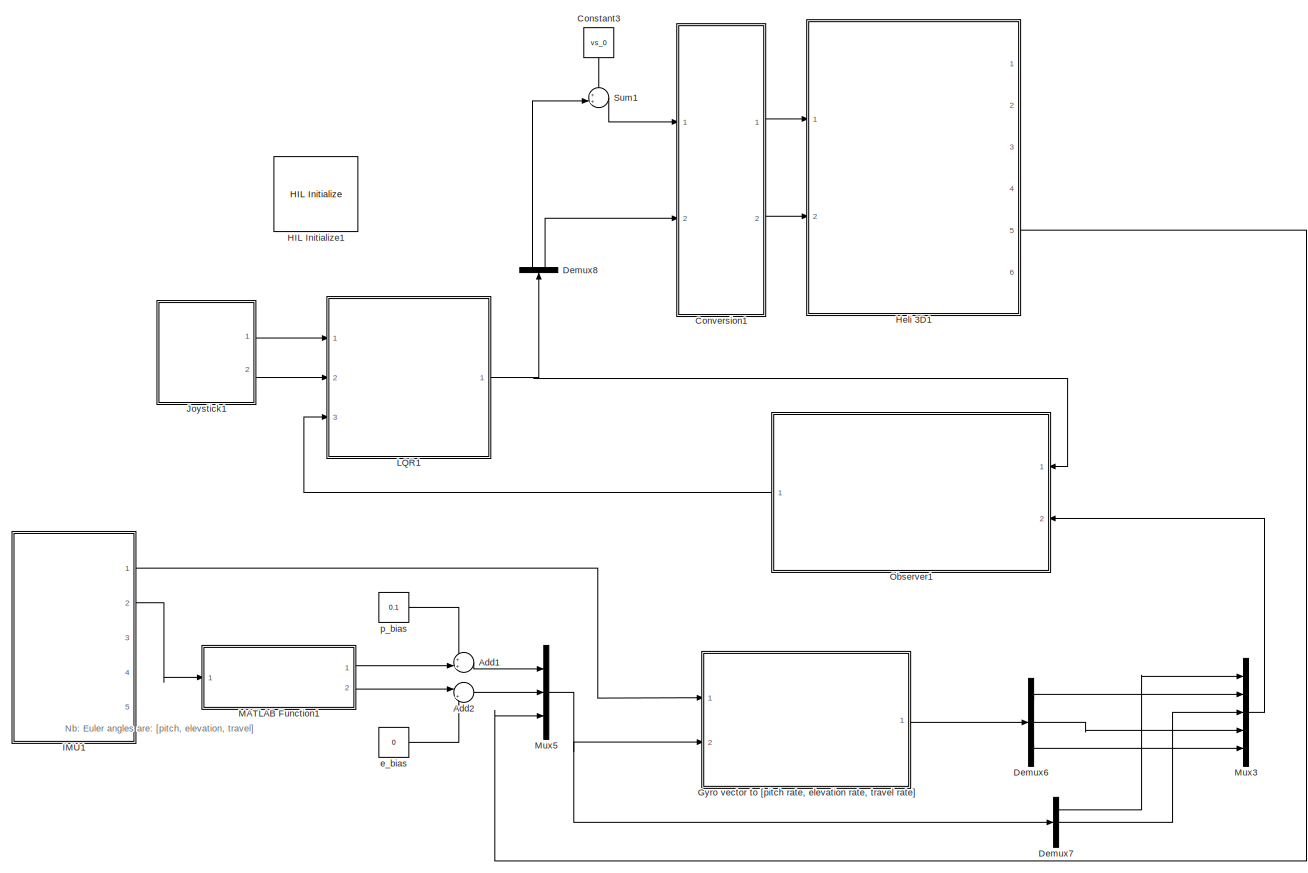
[diagram: root canvas - part 1/2, right side, full height]
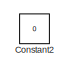
[diagram: root canvas - part 2/2, top left region]
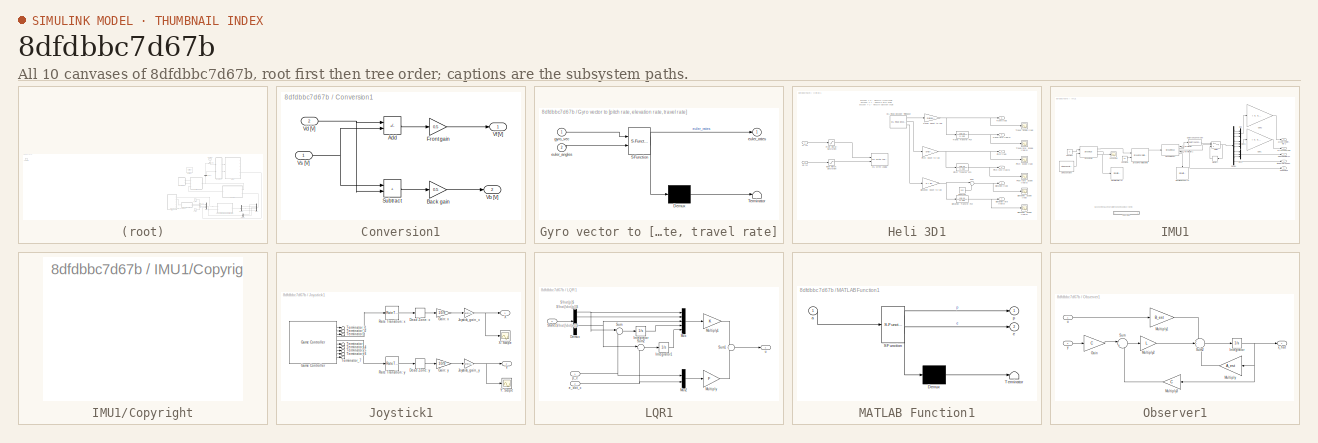
[diagram: thumbnail index - all 10 canvases of the model, root first then tree order]
MODEL slx_8dfdbbc7d67b
KIND model
CONFIG AbsTol = auto
CONFIG EnableMultiTasking = on
CONFIG FixedStep = 0.002
CONFIG MaxStep = auto
CONFIG MinStep = auto
CONFIG PostLoadFcn = qc_set_target_type(getConfigSet(bdroot, 'QUARC Default Target Configuration'));
CONFIG RelTol = 1e-3
CONFIG SampleTimeConstraint = Unconstrained
CONFIG SolverName = ode1
CONFIG StartTime = 0.0
CONFIG StopTime = inf
BLOCK [Sum] Add1
  Inputs = ++|
  Ports = [2, 1]
BLOCK [Sum] Add2
  Inputs = |++
  Ports = [2, 1]
BLOCK [Constant] Constant2
  Commented = on
  Value = 0
BLOCK [Constant] Constant3
  NameLocation = right
  Value = vs_0
BLOCK [SubSystem] Conversion1
  Ports = [2, 2]
  RequestExecContextInheritance = off
BLOCK [Sum] Conversion1/Add
  IconShape = rectangular
  Inputs = -+
  Ports = [2, 1]
BLOCK [Gain] Conversion1/Back gain
  Gain = 0.5
BLOCK [Gain] Conversion1/Front gain
  Gain = 0.5
BLOCK [Sum] Conversion1/Subtract
  IconShape = rectangular
  Ports = [2, 1]
BLOCK [Outport] Conversion1/Vb [V]
  Port = 2
BLOCK [Inport] Conversion1/Vd [V]
  Port = 2
BLOCK [Outport] Conversion1/Vf [V]
BLOCK [Inport] Conversion1/Vs [V]
BLOCK [Demux] Demux6
  Outputs = 3
  Ports = [1, 3]
BLOCK [Demux] Demux7
  Outputs = 3
  Ports = [1, 3]
BLOCK [Demux] Demux8
  NameLocation = right
  Outputs = 2
  Ports = [1, 2]
BLOCK [SubSystem] Gyro vector to [pitch rate, elevation rate, travel rate]
  ErrorFcn = Stateflow.Translate.translate
  PermitHierarchicalResolution = ExplicitOnly
  Ports = [2, 1]
  RequestExecContextInheritance = off
  SFBlockType = MATLAB Function
  TreatAsAtomicUnit = on
BLOCK [Demux] Gyro vector to [pitch rate, elevation rate, travel rate]/ Demux 
  Outputs = 1
  Ports = [1, 1]
BLOCK [S-Function] Gyro vector to [pitch rate, elevation rate, travel rate]/ SFunction 
  EnableBusSupport = on
  FunctionName = sf_sfun
  PortCounts = [2 2]
  Ports = [2, 2]
  SFcnIsStateOwnerBlock = off
  SFunctionDeploymentMode = off
  Tag = Stateflow S-Function 3
BLOCK [Terminator] Gyro vector to [pitch rate, elevation rate, travel rate]/ Terminator 
BLOCK [Inport] Gyro vector to [pitch rate, elevation rate, travel rate]/euler_angles
  Port = 2
BLOCK [Outport] Gyro vector to [pitch rate, elevation rate, travel rate]/euler_rates
BLOCK [Inport] Gyro vector to [pitch rate, elevation rate, travel rate]/gyro_vec
BLOCK [Reference] HIL Initialize1  REF=quarc_library/Data Acquisition/Generic/Configuration/HIL Initialize
  AttributesFormatString = %<object_name> (%<board_type>-%<board_number>)
  Ports = []
  Priority = -99
  SourceBlock = quarc_library/Data Acquisition/Generic/Configuration/HIL Initialize
  SourceProductName = QUARC Targets
  SourceType = HIL Initialize
  UserDataPersistent = on
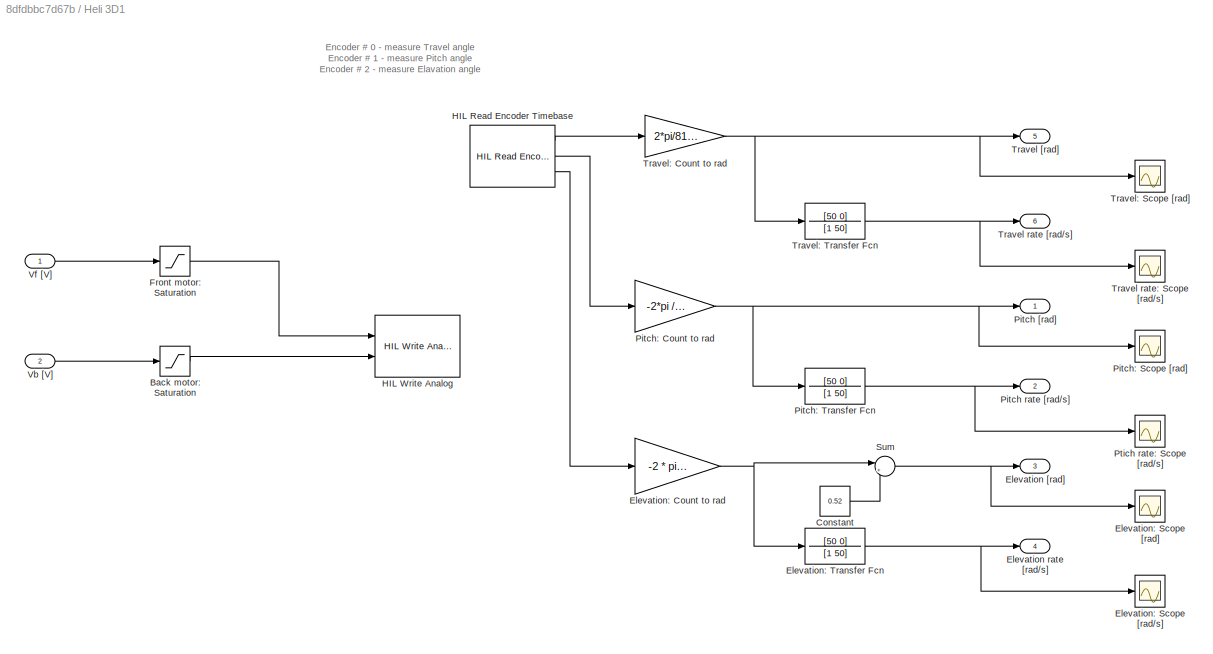
BLOCK [SubSystem] Heli 3D1
  Ports = [2, 6]
  RequestExecContextInheritance = off
BLOCK [Saturate] Heli 3D1/Back motor: Saturation
  LowerLimit = -5
  UpperLimit = 5
BLOCK [Constant] Heli 3D1/Constant
  Value = 0.52
BLOCK [Outport] Heli 3D1/Elevation [rad]
  Port = 3
BLOCK [Outport] Heli 3D1/Elevation rate [rad//s]
  Port = 4
BLOCK [Gain] Heli 3D1/Elevation: Count to rad
  Gain = -2 * pi /4096
BLOCK [Scope] Heli 3D1/Elevation: Scope [rad//s]
  Floating = off
  NumInputPorts = 1
  Ports = [1]
  ScopeSpecificationString = C++SS(StrPVP('Location','[1236, 673, 1560, 912]'),StrPVP('Open','off'),MxPVP('AxesTitles',54,'struct(''axes1'',''%<SignalLabel>'')'),MxPVP('ScopeGraphics',57,'struct(''FigureColor'',''[0.5 0.5 0.5]'',''AxesColor'',''[0 0 0]'',''AxesTickColor'',''[1 1 1]'',''LineColors'',''[1 1 0;1 0 1;0 1 1;1 0 0;0 1 0;0 0 1]'',''LineStyles'',''-|-|-|-|-|-'',''LineWidths'',''[0.5 0.5 0.5 0.5 0.5 0.5]'',''MarkerSty...<+342ch>
BLOCK [Scope] Heli 3D1/Elevation: Scope [rad]
  Floating = off
  NumInputPorts = 1
  Ports = [1]
  ScopeSpecificationString = Simulink.scopes.TimeScopeBlockCfg('CurrentConfiguration', extmgr.ConfigurationSet(extmgr.Configuration('Core','General UI',true),extmgr.Configuration('Core','Source UI',true),extmgr.Configuration('Sources','WiredSimulink',true,'DataLoggingVariableName','ScopeData12','DataLoggingSaveFormat','StructureWithTime','DataLoggingLimitDataPoints',true,'DataLoggingDecimation','1','DataLoggingDecimateData',t...<+1718ch>
BLOCK [TransferFcn] Heli 3D1/Elevation: Transfer Fcn
  Denominator = [1 50]
  Numerator = [50 0]
BLOCK [Saturate] Heli 3D1/Front motor: Saturation
  LowerLimit = -5
  UpperLimit = 5
BLOCK [Reference] Heli 3D1/HIL Read Encoder Timebase  REF=quarc_library/Data Acquisition/Generic/Timebases/HIL Read Encoder
Timebase
  AttributesFormatString = (%<object_name>)
  Ports = [0, 3]
  SourceBlock = quarc_library/Data Acquisition/Generic/Timebases/HIL Read Encoder\nTimebase
  SourceProductName = QUARC Targets
  SourceType = HIL Read Encoder Timebase
  UserDataPersistent = on
BLOCK [Reference] Heli 3D1/HIL Write Analog  REF=quarc_library/Data Acquisition/Generic/Immediate I//O/HIL Write Analog
  AttributesFormatString = (%<object_name>)
  Ports = [2]
  SourceBlock = quarc_library/Data Acquisition/Generic/Immediate I//O/HIL Write Analog
  SourceProductName = QUARC Targets
  SourceType = HIL Write Analog
  UserDataPersistent = on
BLOCK [Outport] Heli 3D1/Pitch [rad]
BLOCK [Outport] Heli 3D1/Pitch rate [rad//s]
  Port = 2
BLOCK [Gain] Heli 3D1/Pitch: Count to rad
  Gain = -2*pi /4096
  NameLocation = top
BLOCK [Scope] Heli 3D1/Pitch: Scope [rad]
  Floating = off
  NumInputPorts = 1
  Ports = [1]
  ScopeSpecificationString = Simulink.scopes.TimeScopeBlockCfg('CurrentConfiguration', extmgr.ConfigurationSet(extmgr.Configuration('Core','General UI',true),extmgr.Configuration('Core','Source UI',true),extmgr.Configuration('Sources','WiredSimulink',true,'DataLoggingVariableName','ScopeData10','DataLoggingSaveFormat','StructureWithTime','DataLoggingLimitDataPoints',true,'DataLoggingDecimation','1','DataLoggingDecimateData',t...<+1651ch>
BLOCK [TransferFcn] Heli 3D1/Pitch: Transfer Fcn
  Denominator = [1 50]
  Numerator = [50 0]
BLOCK [Scope] Heli 3D1/Ptich rate: Scope [rad//s]
  Floating = off
  NumInputPorts = 1
  Ports = [1]
  ScopeSpecificationString = C++SS(StrPVP('Location','[1236, 673, 1560, 912]'),StrPVP('Open','off'),MxPVP('AxesTitles',54,'struct(''axes1'',''%<SignalLabel>'')'),MxPVP('ScopeGraphics',57,'struct(''FigureColor'',''[0.5 0.5 0.5]'',''AxesColor'',''[0 0 0]'',''AxesTickColor'',''[1 1 1]'',''LineColors'',''[1 1 0;1 0 1;0 1 1;1 0 0;0 1 0;0 0 1]'',''LineStyles'',''-|-|-|-|-|-'',''LineWidths'',''[0.5 0.5 0.5 0.5 0.5 0.5]'',''MarkerSty...<+342ch>
BLOCK [Sum] Heli 3D1/Sum
  Inputs = |+-
  Ports = [2, 1]
BLOCK [Outport] Heli 3D1/Travel [rad]
  Port = 5
BLOCK [Outport] Heli 3D1/Travel rate [rad//s]
  Port = 6
BLOCK [Scope] Heli 3D1/Travel rate: Scope [rad//s]
  Floating = off
  NumInputPorts = 1
  Ports = [1]
  ScopeSpecificationString = Simulink.scopes.TimeScopeBlockCfg('CurrentConfiguration', extmgr.ConfigurationSet(extmgr.Configuration('Core','General UI',true),extmgr.Configuration('Core','Source UI',true),extmgr.Configuration('Sources','WiredSimulink',true,'DataLoggingVariableName','ScopeData9','DataLoggingSaveFormat','StructureWithTime','DataLoggingLimitDataPoints',true,'DataLoggingDecimation','1','DataLoggingDecimateData',tr...<+1650ch>
BLOCK [Gain] Heli 3D1/Travel: Count to rad
  Gain = 2*pi/8192
  NameLocation = top
BLOCK [Scope] Heli 3D1/Travel: Scope [rad]
  Floating = off
  NumInputPorts = 1
  Ports = [1]
  ScopeSpecificationString = Simulink.scopes.TimeScopeBlockCfg('CurrentConfiguration', extmgr.ConfigurationSet(extmgr.Configuration('Core','General UI',true),extmgr.Configuration('Core','Source UI',true),extmgr.Configuration('Sources','WiredSimulink',true,'DataLoggingVariableName','ScopeData8','DataLoggingSaveFormat','StructureWithTime','DataLoggingLimitDataPoints',true,'DataLoggingDecimation','1','DataLoggingDecimateData',tr...<+1650ch>
BLOCK [TransferFcn] Heli 3D1/Travel: Transfer Fcn
  Denominator = [1 50]
  Numerator = [50 0]
BLOCK [Inport] Heli 3D1/Vb [V]
  Port = 2
BLOCK [Inport] Heli 3D1/Vf [V]
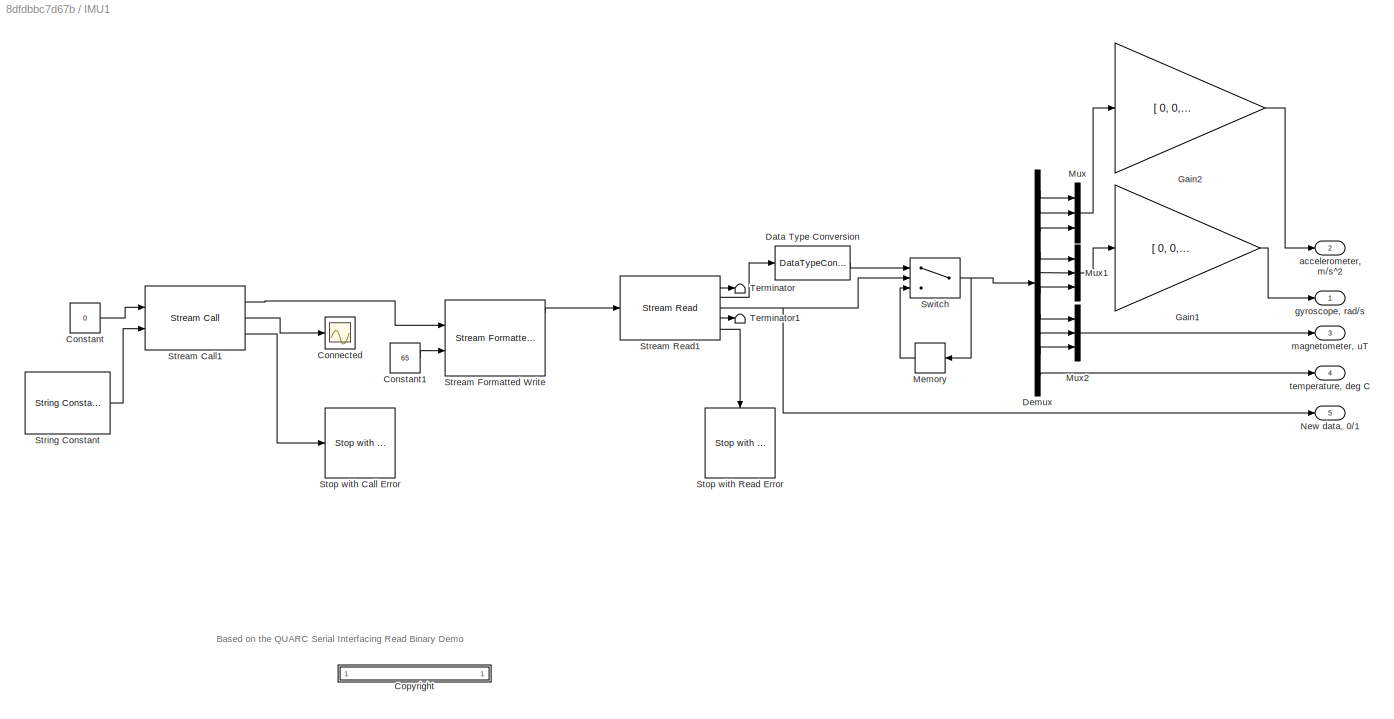
BLOCK [SubSystem] IMU1
  Ports = [0, 5]
  RequestExecContextInheritance = off
BLOCK [Scope] IMU1/Connected
  Floating = off
  NumInputPorts = 1
  Ports = [1]
  ScopeSpecificationString = Simulink.scopes.TimeScopeBlockCfg('CurrentConfiguration', extmgr.ConfigurationSet(extmgr.Configuration('Core','General UI',true),extmgr.Configuration('Core','Source UI',true),extmgr.Configuration('Sources','WiredSimulink',true,'DataLoggingSaveFormat','StructureWithTime','DataLoggingLimitDataPoints',true,'DataLoggingDecimation','1','DataLoggingDecimateData',true,'DataLoggingVariableName','ScopeData...<+909ch>
BLOCK [Constant] IMU1/Constant
  Value = 0
BLOCK [Constant] IMU1/Constant1
  Value = 65
BLOCK [SubSystem] IMU1/<copyright redacted>
  OpenFcn = web('http://www.quanser.com/');
  Permissions = NoReadOrWrite
  PermitHierarchicalResolution = None
  Ports = []
  RequestExecContextInheritance = off
BLOCK [DataTypeConversion] IMU1/Data Type Conversion
  OutDataTypeStr = double
  RndMeth = Floor
  SaturateOnIntegerOverflow = off
BLOCK [Demux] IMU1/Demux
  Outputs = 10
  Ports = [1, 10]
BLOCK [Gain] IMU1/Gain1
  Gain = [ 0, 0, 1; 0, 1, 0; -1, 0, 0]
  Multiplication = Matrix(K*u) (u vector)
BLOCK [Gain] IMU1/Gain2
  Gain = [ 0, 0, 1; 0, 1, 0; -1, 0, 0]
  Multiplication = Matrix(K*u) (u vector)
BLOCK [Memory] IMU1/Memory
  InitialCondition = [0 0 0 0 0 0 0 0 0 0]
  NameLocation = top
BLOCK [Mux] IMU1/Mux
  DisplayOption = bar
  Inputs = 3
  Ports = [3, 1]
BLOCK [Mux] IMU1/Mux1
  DisplayOption = bar
  Inputs = 3
  Ports = [3, 1]
BLOCK [Mux] IMU1/Mux2
  DisplayOption = bar
  Inputs = 3
  Ports = [3, 1]
BLOCK [Outport] IMU1/New data, 0//1
  Port = 5
BLOCK [Reference] IMU1/Stop with Call Error  REF=quarc_library/Sinks/Error Handling/Stop with Error
  Ports = [1]
  SourceBlock = quarc_library/Sinks/Error Handling/Stop with Error
  SourceProductName = QUARC Targets
  SourceType = Stop with Error
BLOCK [Reference] IMU1/Stop with Read Error  REF=quarc_library/Sinks/Error Handling/Stop with Error
  NameLocation = left
  Ports = [1]
  SourceBlock = quarc_library/Sinks/Error Handling/Stop with Error
  SourceProductName = QUARC Targets
  SourceType = Stop with Error
BLOCK [Reference] IMU1/Stream Call1  REF=quarc_library/Communications/Intermediate/Stream Call
  Ports = [2, 3]
  SourceBlock = quarc_library/Communications/Intermediate/Stream Call
  SourceProductName = QUARC Targets
  SourceType = Stream Call
BLOCK [Reference] IMU1/Stream Formatted Write  REF=quarc_library/Communications/Intermediate/Stream Formatted
Write
  Ports = [2, 5]
  SourceBlock = quarc_library/Communications/Intermediate/Stream Formatted\nWrite
  SourceProductName = QUARC Targets
  SourceType = Stream Formatted Write
BLOCK [Reference] IMU1/Stream Read1  REF=quarc_library/Communications/Intermediate/Stream Read
  Ports = [1, 5]
  SourceBlock = quarc_library/Communications/Intermediate/Stream Read
  SourceProductName = QUARC Targets
  SourceType = Stream Read
BLOCK [Reference] IMU1/String Constant  REF=quarc_library/Strings/String Constant
  AttributesFormatString = "serial://IMU:3?baud=115200,word=8,parity=none,stop=1"
  Ports = [0, 1]
  SourceBlock = quarc_library/Strings/String Constant
  SourceProductName = QUARC Targets
  SourceType = String Constant
BLOCK [Switch] IMU1/Switch
  Criteria = u2 > Threshold
  InputSameDT = off
  SaturateOnIntegerOverflow = off
BLOCK [Terminator] IMU1/Terminator
BLOCK [Terminator] IMU1/Terminator1
BLOCK [Outport] IMU1/accelerometer, m//s^2
  Port = 2
BLOCK [Outport] IMU1/gyroscope, rad//s
BLOCK [Outport] IMU1/magnetometer, uT
  Port = 3
BLOCK [Outport] IMU1/temperature, deg C
  Port = 4
BLOCK [SubSystem] Joystick1
  Ports = [0, 2]
  RequestExecContextInheritance = off
BLOCK [DeadZone] Joystick1/Dead Zone: x
  LowerValue = -0.1
  UpperValue = 0.1
BLOCK [DeadZone] Joystick1/Dead Zone: y
  LowerValue = -0.1
  UpperValue = 0.1
BLOCK [Gain] Joystick1/Gain: x
  Gain = 10/9
BLOCK [Gain] Joystick1/Gain: y
  Gain = 10/9
BLOCK [Reference] Joystick1/Game Controller  REF=quarc_library/Devices/Peripherals/Target/Game Controller
  Ports = [0, 10]
  SourceBlock = quarc_library/Devices/Peripherals/Target/Game Controller
  SourceProductName = QUARC Targets
  SourceType = Game Controller
BLOCK [Gain] Joystick1/Joystick_gain_x
  Gain = Joystick_gain_x
BLOCK [Gain] Joystick1/Joystick_gain_y
  Gain = Joystick_gain_y
BLOCK [RateTransition] Joystick1/Rate Transition: x
BLOCK [RateTransition] Joystick1/Rate Transition: y
BLOCK [Terminator] Joystick1/Terminator
BLOCK [Terminator] Joystick1/Terminator1
BLOCK [Terminator] Joystick1/Terminator_1
BLOCK [Terminator] Joystick1/Terminator_2
BLOCK [Terminator] Joystick1/Terminator_4
BLOCK [Terminator] Joystick1/Terminator_5
BLOCK [Terminator] Joystick1/Terminator_6
BLOCK [Terminator] Joystick1/Terminator_7
BLOCK [Outport] Joystick1/X
BLOCK [Scope] Joystick1/X: Scope
  Floating = off
  NumInputPorts = 1
  Ports = [1]
  ScopeSpecificationString = C++SS(StrPVP('Location','[894, 60, 1218, 301]'),StrPVP('Open','off'),StrPVP('ZoomMode','yonly'),MxPVP('AxesTitles',54,'struct(''axes1'',''%<SignalLabel>'')'),MxPVP('ScopeGraphics',57,'struct(''FigureColor'',''[0.5 0.5 0.5]'',''AxesColor'',''[0 0 0]'',''AxesTickColor'',''[1 1 1]'',''LineColors'',''[1 1 0;1 0 1;0 1 1;1 0 0;0 1 0;0 0 1]'',''LineStyles'',''-|-|-|-|-|-'',''LineWidths'',''[0.5 0.5 0.5 0...<+364ch>
BLOCK [Outport] Joystick1/Y
  Port = 2
BLOCK [Scope] Joystick1/Y: Scope
  Floating = off
  NumInputPorts = 1
  Ports = [1]
  ScopeSpecificationString = C++SS(StrPVP('Location','[894, 368, 1218, 604]'),StrPVP('Open','off'),MxPVP('AxesTitles',54,'struct(''axes1'',''%<SignalLabel>'')'),MxPVP('ScopeGraphics',57,'struct(''FigureColor'',''[0.5 0.5 0.5]'',''AxesColor'',''[0 0 0]'',''AxesTickColor'',''[1 1 1]'',''LineColors'',''[1 1 0;1 0 1;0 1 1;1 0 0;0 1 0;0 0 1]'',''LineStyles'',''-|-|-|-|-|-'',''LineWidths'',''[0.5 0.5 0.5 0.5 0.5 0.5]'',''MarkerStyl...<+340ch>
BLOCK [SubSystem] LQR1
  Ports = [3, 1]
  RequestExecContextInheritance = off
BLOCK [Demux] LQR1/Demux
  Outputs = 5
  Ports = [1, 5]
BLOCK [Integrator] LQR1/Integrator
  Ports = [1, 1]
BLOCK [Integrator] LQR1/Integrator1
  Ports = [1, 1]
BLOCK [Gain] LQR1/Multiply
  Gain = F
  Multiplication = Matrix(K*u) (u vector)
BLOCK [Gain] LQR1/Multiply1
  Gain = K
  Multiplication = Matrix(K*u) (u vector)
BLOCK [Mux] LQR1/Mux
  DisplayOption = bar
  Inputs = 5
  Ports = [5, 1]
BLOCK [Mux] LQR1/Mux2
  DisplayOption = bar
  Inputs = 2
  Ports = [2, 1]
BLOCK [Inport] LQR1/States
  Port = 3
BLOCK [Sum] LQR1/Sum
  Inputs = |+-
  Ports = [2, 1]
BLOCK [Sum] LQR1/Sum1
  Inputs = -|+
  Ports = [2, 1]
BLOCK [Sum] LQR1/Sum2
  Inputs = |+-
  Ports = [2, 1]
BLOCK [Inport] LQR1/e_dot_c
  Port = 2
BLOCK [Inport] LQR1/p_c
  NameLocation = top
BLOCK [Outport] LQR1/u
BLOCK [SubSystem] MATLAB Function1
  ErrorFcn = Stateflow.Translate.translate
  PermitHierarchicalResolution = ExplicitOnly
  Ports = [1, 2]
  RequestExecContextInheritance = off
  SFBlockType = MATLAB Function
  TreatAsAtomicUnit = on
BLOCK [Demux] MATLAB Function1/ Demux 
  Outputs = 1
  Ports = [1, 1]
BLOCK [S-Function] MATLAB Function1/ SFunction 
  EnableBusSupport = on
  FunctionName = sf_sfun
  PortCounts = [1 3]
  Ports = [1, 3]
  SFcnIsStateOwnerBlock = off
  SFunctionDeploymentMode = off
  Tag = Stateflow S-Function 4
BLOCK [Terminator] MATLAB Function1/ Terminator 
BLOCK [Inport] MATLAB Function1/a
BLOCK [Outport] MATLAB Function1/e
  Port = 2
BLOCK [Outport] MATLAB Function1/p
BLOCK [Mux] Mux3
  DisplayOption = bar
  Inputs = 5
  Ports = [5, 1]
BLOCK [Mux] Mux5
  DisplayOption = bar
  Inputs = 3
  Ports = [3, 1]
BLOCK [SubSystem] Observer1
  NameLocation = top
  Ports = [2, 1]
  RequestExecContextInheritance = off
BLOCK [Gain] Observer1/Gain
  Gain = C
  Multiplication = Matrix(K*u) (u vector)
BLOCK [Integrator] Observer1/Integrator
  Ports = [1, 1]
BLOCK [Gain] Observer1/Multiply
  Gain = A_est
  Multiplication = Matrix(K*u) (u vector)
BLOCK [Gain] Observer1/Multiply1
  Gain = B_est
  Multiplication = Matrix(K*u) (u vector)
BLOCK [Gain] Observer1/Multiply2
  Gain = L
  Multiplication = Matrix(K*u) (u vector)
BLOCK [Gain] Observer1/Multiply3
  Gain = C
  Multiplication = Matrix(K*u) (u vector)
BLOCK [Sum] Observer1/Sum
  Inputs = |+-
  Ports = [2, 1]
BLOCK [Sum] Observer1/Sum2
  Inputs = +++
  Ports = [3, 1]
BLOCK [Inport] Observer1/u
BLOCK [Outport] Observer1/x_hat
BLOCK [Inport] Observer1/y
  Port = 2
BLOCK [Sum] Sum1
  Inputs = ++|
  Ports = [2, 1]
BLOCK [Constant] e_bias
  Value = 0
BLOCK [Constant] p_bias
  Value = 0.1
ANNOTATION (root): Nb: Euler angles are: [pitch, elevation, travel]
ANNOTATION Heli 3D1: Encoder # 0 - measure Travel angle Encoder # 1 - measure Pitch angle Encoder # 2 - measure Elavation angle
ANNOTATION IMU1: Based on the QUARC Serial Interfacing Read Binary Demo
ANNOTATION LQR1: $\hat{\dot{e}}$
ANNOTATION LQR1: $\hat{\dot{p}}$
ANNOTATION LQR1: $\hat{p}$
LINE Add1:1 -> Mux5:1
LINE Add2:1 -> Mux5:2
LINE Constant3:1 -> Sum1:1
LINE Conversion1/Add:1 -> Conversion1/Front gain:1
LINE Conversion1/Back gain:1 -> Conversion1/Vb [V]:1
LINE Conversion1/Front gain:1 -> Conversion1/Vf [V]:1
LINE Conversion1/Subtract:1 -> Conversion1/Back gain:1
NET Conversion1/Vd [V]:1 -> Conversion1/Add:1, Conversion1/Subtract:2
NET Conversion1/Vs [V]:1 -> Conversion1/Add:2, Conversion1/Subtract:1
LINE Conversion1:1 -> Heli 3D1:1
LINE Conversion1:2 -> Heli 3D1:2
LINE Demux6:1 -> Mux3:2
LINE Demux6:2 -> Mux3:4
LINE Demux6:3 -> Mux3:5
LINE Demux7:1 -> Mux3:1
LINE Demux7:2 -> Mux3:3
LINE Demux8:1 -> Sum1:2
LINE Demux8:2 -> Conversion1:2
LINE Gyro vector to [pitch rate, elevation rate, travel rate]:1 -> Demux6:1
LINE Heli 3D1/Back motor: Saturation:1 -> Heli 3D1/HIL Write Analog:2
LINE Heli 3D1/Constant:1 -> Heli 3D1/Sum:2
NET Heli 3D1/Elevation: Count to rad:1 -> Heli 3D1/Elevation: Transfer Fcn:1, Heli 3D1/Sum:1
NET Heli 3D1/Elevation: Transfer Fcn:1 -> Heli 3D1/Elevation rate [rad//s]:1, Heli 3D1/Elevation: Scope [rad//s]:1
LINE Heli 3D1/Front motor: Saturation:1 -> Heli 3D1/HIL Write Analog:1
LINE Heli 3D1/HIL Read Encoder Timebase:1 -> Heli 3D1/Travel: Count to rad:1
LINE Heli 3D1/HIL Read Encoder Timebase:2 -> Heli 3D1/Pitch: Count to rad:1
LINE Heli 3D1/HIL Read Encoder Timebase:3 -> Heli 3D1/Elevation: Count to rad:1
NET Heli 3D1/Pitch: Count to rad:1 -> Heli 3D1/Pitch [rad]:1, Heli 3D1/Pitch: Scope [rad]:1, Heli 3D1/Pitch: Transfer Fcn:1
NET Heli 3D1/Pitch: Transfer Fcn:1 -> Heli 3D1/Pitch rate [rad//s]:1, Heli 3D1/Ptich rate: Scope [rad//s]:1
NET Heli 3D1/Sum:1 -> Heli 3D1/Elevation [rad]:1, Heli 3D1/Elevation: Scope [rad]:1
NET Heli 3D1/Travel: Count to rad:1 -> Heli 3D1/Travel [rad]:1, Heli 3D1/Travel: Scope [rad]:1, Heli 3D1/Travel: Transfer Fcn:1
NET Heli 3D1/Travel: Transfer Fcn:1 -> Heli 3D1/Travel rate [rad//s]:1, Heli 3D1/Travel rate: Scope [rad//s]:1
LINE Heli 3D1/Vb [V]:1 -> Heli 3D1/Back motor: Saturation:1
LINE Heli 3D1/Vf [V]:1 -> Heli 3D1/Front motor: Saturation:1
LINE Heli 3D1:5 -> Mux5:3
LINE IMU1/Constant1:1 -> IMU1/Stream Formatted Write:2
LINE IMU1/Constant:1 -> IMU1/Stream Call1:1
LINE IMU1/Data Type Conversion:1 -> IMU1/Switch:1
LINE IMU1/Demux:1 -> IMU1/Mux:1
LINE IMU1/Demux:10 -> IMU1/temperature, deg C:1
LINE IMU1/Demux:2 -> IMU1/Mux:2
LINE IMU1/Demux:3 -> IMU1/Mux:3
LINE IMU1/Demux:4 -> IMU1/Mux1:1
LINE IMU1/Demux:5 -> IMU1/Mux1:2
LINE IMU1/Demux:6 -> IMU1/Mux1:3
LINE IMU1/Demux:7 -> IMU1/Mux2:1
LINE IMU1/Demux:8 -> IMU1/Mux2:2
LINE IMU1/Demux:9 -> IMU1/Mux2:3
LINE IMU1/Gain1:1 -> IMU1/gyroscope, rad//s:1
LINE IMU1/Gain2:1 -> IMU1/accelerometer, m//s^2:1
LINE IMU1/Memory:1 -> IMU1/Switch:3
LINE IMU1/Mux1:1 -> IMU1/Gain1:1
LINE IMU1/Mux2:1 -> IMU1/magnetometer, uT:1
LINE IMU1/Mux:1 -> IMU1/Gain2:1
LINE IMU1/Stream Call1:1 -> IMU1/Stream Formatted Write:1
LINE IMU1/Stream Call1:2 -> IMU1/Connected:1
LINE IMU1/Stream Call1:3 -> IMU1/Stop with Call Error:1
LINE IMU1/Stream Formatted Write:1 -> IMU1/Stream Read1:1
LINE IMU1/Stream Read1:1 -> IMU1/Terminator:1
LINE IMU1/Stream Read1:2 -> IMU1/Data Type Conversion:1
NET IMU1/Stream Read1:3 -> IMU1/New data, 0//1:1, IMU1/Switch:2
LINE IMU1/Stream Read1:4 -> IMU1/Terminator1:1
LINE IMU1/Stream Read1:5 -> IMU1/Stop with Read Error:1
LINE IMU1/String Constant:1 -> IMU1/Stream Call1:2
NET IMU1/Switch:1 -> IMU1/Demux:1, IMU1/Memory:1
LINE IMU1:1 -> Gyro vector to [pitch rate, elevation rate, travel rate]:1
LINE IMU1:2 -> MATLAB Function1:1
LINE Joystick1/Dead Zone: x:1 -> Joystick1/Gain: x:1
LINE Joystick1/Dead Zone: y:1 -> Joystick1/Gain: y:1
LINE Joystick1/Gain: x:1 -> Joystick1/Joystick_gain_x:1
LINE Joystick1/Gain: y:1 -> Joystick1/Joystick_gain_y:1
LINE Joystick1/Game Controller:1 -> Joystick1/Terminator_1:1
LINE Joystick1/Game Controller:10 -> Joystick1/Terminator_7:1
LINE Joystick1/Game Controller:2 -> Joystick1/Terminator_2:1
LINE Joystick1/Game Controller:3 -> Joystick1/Terminator1:1
LINE Joystick1/Game Controller:4 -> Joystick1/Rate Transition: x:1
LINE Joystick1/Game Controller:5 -> Joystick1/Rate Transition: y:1
LINE Joystick1/Game Controller:6 -> Joystick1/Terminator:1
LINE Joystick1/Game Controller:7 -> Joystick1/Terminator_4:1
LINE Joystick1/Game Controller:8 -> Joystick1/Terminator_5:1
LINE Joystick1/Game Controller:9 -> Joystick1/Terminator_6:1
NET Joystick1/Joystick_gain_x:1 -> Joystick1/X: Scope:1, Joystick1/X:1
NET Joystick1/Joystick_gain_y:1 -> Joystick1/Y: Scope:1, Joystick1/Y:1
LINE Joystick1/Rate Transition: x:1 -> Joystick1/Dead Zone: x:1
LINE Joystick1/Rate Transition: y:1 -> Joystick1/Dead Zone: y:1
LINE Joystick1:1 -> LQR1:1
LINE Joystick1:2 -> LQR1:2
NET LQR1/Demux:1 -> LQR1/Mux:1, LQR1/Sum:1
LINE LQR1/Demux:2 -> LQR1/Mux:2
NET LQR1/Demux:4 -> LQR1/Mux:3, LQR1/Sum2:1
LINE LQR1/Integrator1:1 -> LQR1/Mux:5
LINE LQR1/Integrator:1 -> LQR1/Mux:4
LINE LQR1/Multiply1:1 -> LQR1/Sum1:1
LINE LQR1/Multiply:1 -> LQR1/Sum1:2
LINE LQR1/Mux2:1 -> LQR1/Multiply:1
LINE LQR1/Mux:1 -> LQR1/Multiply1:1
LINE LQR1/States:1 -> LQR1/Demux:1
LINE LQR1/Sum1:1 -> LQR1/u:1
LINE LQR1/Sum2:1 -> LQR1/Integrator1:1
LINE LQR1/Sum:1 -> LQR1/Integrator:1
NET LQR1/e_dot_c:1 -> LQR1/Mux2:2, LQR1/Sum2:2
NET LQR1/p_c:1 -> LQR1/Mux2:1, LQR1/Sum:2
NET LQR1:1 -> Demux8:1, Observer1:1
LINE MATLAB Function1:1 -> Add1:2
LINE MATLAB Function1:2 -> Add2:1
LINE Mux3:1 -> Observer1:2
NET Mux5:1 -> Demux7:1, Gyro vector to [pitch rate, elevation rate, travel rate]:2
LINE Observer1/Gain:1 -> Observer1/Sum:1
NET Observer1/Integrator:1 -> Observer1/Multiply3:1, Observer1/Multiply:1, Observer1/x_hat:1
LINE Observer1/Multiply1:1 -> Observer1/Sum2:1
LINE Observer1/Multiply2:1 -> Observer1/Sum2:2
LINE Observer1/Multiply3:1 -> Observer1/Sum:2
LINE Observer1/Multiply:1 -> Observer1/Sum2:3
LINE Observer1/Sum2:1 -> Observer1/Integrator:1
LINE Observer1/Sum:1 -> Observer1/Multiply2:1
LINE Observer1/u:1 -> Observer1/Multiply1:1
LINE Observer1/y:1 -> Observer1/Gain:1
LINE Observer1:1 -> LQR1:3
LINE Sum1:1 -> Conversion1:1
LINE e_bias:1 -> Add2:2
LINE p_bias:1 -> Add1:1
note: NET lines group one-source signal fan-out (src -> all destinations, sorted); 1:1 wires keep LINE
CHART Gyro vector to [pitch rate, elevation rate, travel rate] states=1 transitions=1
  STATE_LABEL 'eML_blk_kernel()'
  STATE_LABEL 'SCRIPT:\nfunction euler_rates = gyro_vec_to_euler_rates(gyro_vec,euler_angles)\n%#codegen\n    phi = euler_angles(1);\n    theta = euler_angles(2);\n    %psi = euler_angles(3);\n\n\n    T = [1, sin(phi)*tan(theta), cos(phi)*tan(theta);\n         0, cos(phi),            -sin(phi);\n         0, sin(phi)/cos(theta), cos(phi)/cos(theta)]; \neuler_rates = T*gyro_vec;'
CHART MATLAB Function1 states=1 transitions=1
  STATE_LABEL 'eML_blk_kernel()'
  STATE_LABEL 'SCRIPT:\nfunction [p, e] = orientationFromAcceleration(a)\n\n    ax = a(1); ay = a(2); az = a(3);\n    if az == 0\n        p = sign(ay)*pi/2;\n    else\n        p = atan(ay/az);\n    end\n    \n    if ay == 0 && az == 0\n        e = sign(ax)*pi/2;\n    else\n        e = atan(ax/sqrt(ay^2 + az^2));\n    end\nend'
CHART  states=0 transitions=0
CHART  states=0 transitions=0
